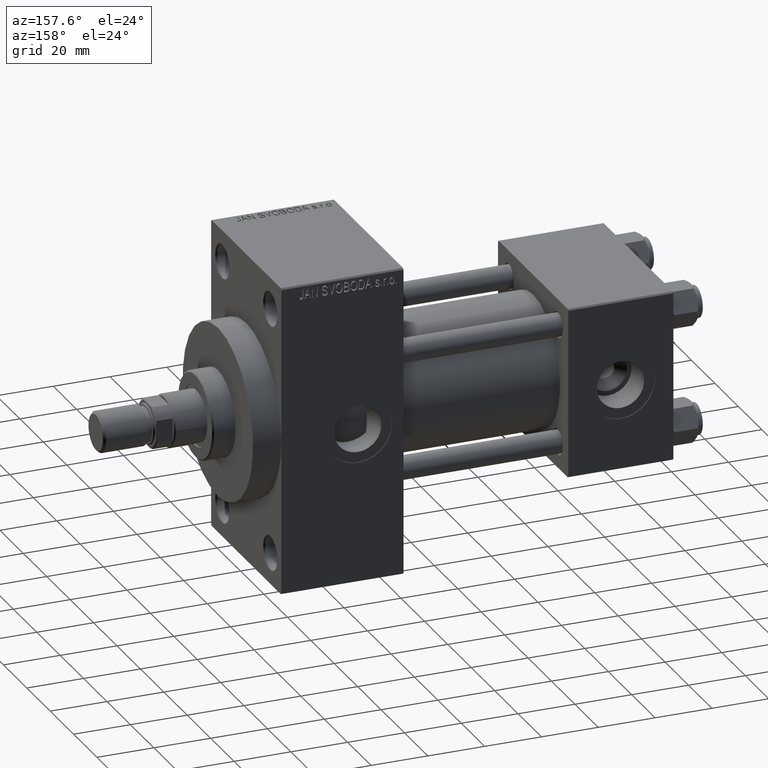
[diagram: clean part render]
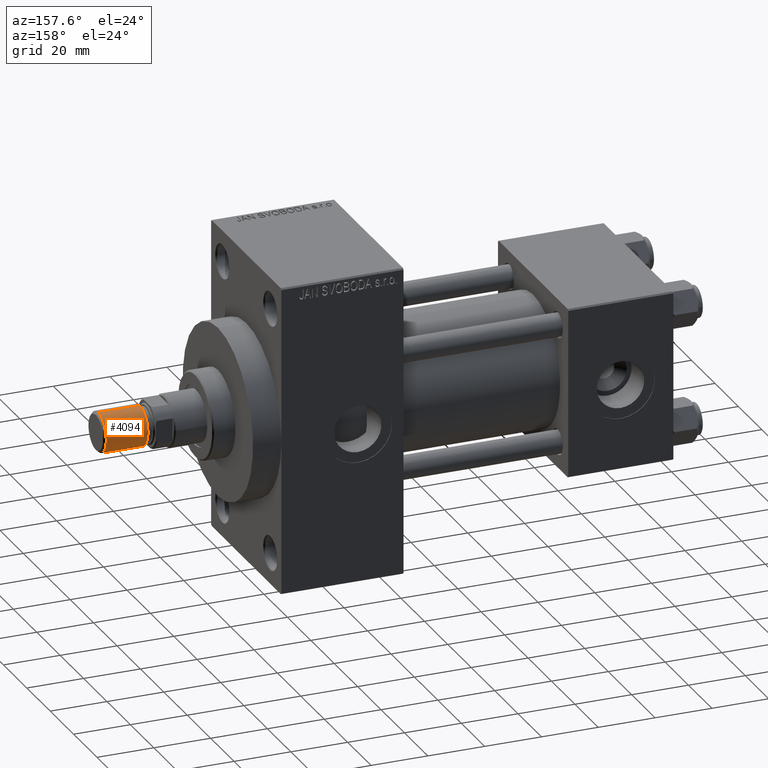
[diagram: same view with one face highlighted and labeled with its STEP entity id]
A machine part, auxiliary view. The second image highlights one B-rep face of the part: STEP entity #4094.
In plain terms, the highlighted cylindrical surface (edge-blend (fillet) strip) has radius 7 mm, axis along (1, -0, -0).
Its self-contained STEP definition (entity closure, byte-faithful):
#1698 = EDGE_CURVE ( 'NONE', #33894, #34612, #31905, .T. ) ;
#1774 = DIRECTION ( 'NONE',  ( -1.000000000000000000, 0.000000000000000000, 0.000000000000000000 ) ) ;
#3548 = CARTESIAN_POINT ( 'NONE',  ( 0.000000000000000000, 0.000000000000000000, 0.8000000000000020428 ) ) ;
#4094 = ADVANCED_FACE ( 'NONE', ( #27367 ), #20137, .T. ) ;
#6095 = CARTESIAN_POINT ( 'NONE',  ( 0.000000000000000000, 0.000000000000000000, 15.50000000000000000 ) ) ;
#9350 = VECTOR ( 'NONE', #46980, 1000.000000000000000 ) ;
#10273 = ORIENTED_EDGE ( 'NONE', *, *, #22863, .T. ) ;
#10283 = CIRCLE ( 'NONE', #16447, 7.000000000000000000 ) ;
#10363 = AXIS2_PLACEMENT_3D ( 'NONE', #41610, #34856, #1774 ) ;
#14656 = ORIENTED_EDGE ( 'NONE', *, *, #16745, .F. ) ;
#14951 = AXIS2_PLACEMENT_3D ( 'NONE', #3548, #18039, #44581 ) ;
#16447 = AXIS2_PLACEMENT_3D ( 'NONE', #6095, #28760, #35535 ) ;
#16745 = EDGE_CURVE ( 'NONE', #27002, #34612, #39283, .T. ) ;
#17064 = CARTESIAN_POINT ( 'NONE',  ( -7.000000000000000000, 0.000000000000000000, 15.50000000000000000 ) ) ;
#17976 = CARTESIAN_POINT ( 'NONE',  ( -7.000000000000000000, 0.000000000000000000, 0.8000000000000020428 ) ) ;
#18039 = DIRECTION ( 'NONE',  ( -0.000000000000000000, -0.000000000000000000, 1.000000000000000000 ) ) ;
#20137 = CYLINDRICAL_SURFACE ( 'NONE', #10363, 7.000000000000000000 ) ;
#21654 = LINE ( 'NONE', #40211, #9350 ) ;
#22863 = EDGE_CURVE ( 'NONE', #46440, #33894, #21654, .T. ) ;
#23492 = CARTESIAN_POINT ( 'NONE',  ( 7.000000000000000000, 8.572527594031473190E-16, 15.50000000000000000 ) ) ;
#24695 = CARTESIAN_POINT ( 'NONE',  ( 7.000000000000000000, 8.572527594031473190E-16, 0.8000000000000020428 ) ) ;
#27002 = VERTEX_POINT ( 'NONE', #28211 ) ;
#27367 = FACE_OUTER_BOUND ( 'NONE', #47694, .T. ) ;
#28211 = CARTESIAN_POINT ( 'NONE',  ( -7.000000000000000000, 0.000000000000000000, 15.50000000000000000 ) ) ;
#28418 = VECTOR ( 'NONE', #45548, 1000.000000000000000 ) ;
#28760 = DIRECTION ( 'NONE',  ( 0.000000000000000000, 0.000000000000000000, 1.000000000000000000 ) ) ;
#31904 = EDGE_CURVE ( 'NONE', #46440, #27002, #10283, .T. ) ;
#31905 = CIRCLE ( 'NONE', #14951, 7.000000000000000000 ) ;
#33894 = VERTEX_POINT ( 'NONE', #24695 ) ;
#34612 = VERTEX_POINT ( 'NONE', #17976 ) ;
#34856 = DIRECTION ( 'NONE',  ( -0.000000000000000000, -0.000000000000000000, -1.000000000000000000 ) ) ;
#35535 = DIRECTION ( 'NONE',  ( 1.000000000000000000, 0.000000000000000000, 0.000000000000000000 ) ) ;
#38585 = ORIENTED_EDGE ( 'NONE', *, *, #1698, .T. ) ;
#39283 = LINE ( 'NONE', #17064, #28418 ) ;
#39302 = ORIENTED_EDGE ( 'NONE', *, *, #31904, .F. ) ;
#40211 = CARTESIAN_POINT ( 'NONE',  ( 7.000000000000000000, 8.572527594031473190E-16, 15.50000000000000000 ) ) ;
#41610 = CARTESIAN_POINT ( 'NONE',  ( 0.000000000000000000, 0.000000000000000000, 15.50000000000000000 ) ) ;
#44581 = DIRECTION ( 'NONE',  ( 1.000000000000000000, 0.000000000000000000, 0.000000000000000000 ) ) ;
#45548 = DIRECTION ( 'NONE',  ( -0.000000000000000000, -0.000000000000000000, -1.000000000000000000 ) ) ;
#46440 = VERTEX_POINT ( 'NONE', #23492 ) ;
#46980 = DIRECTION ( 'NONE',  ( -0.000000000000000000, -0.000000000000000000, -1.000000000000000000 ) ) ;
#47694 = EDGE_LOOP ( 'NONE', ( #39302, #10273, #38585, #14656 ) ) ;